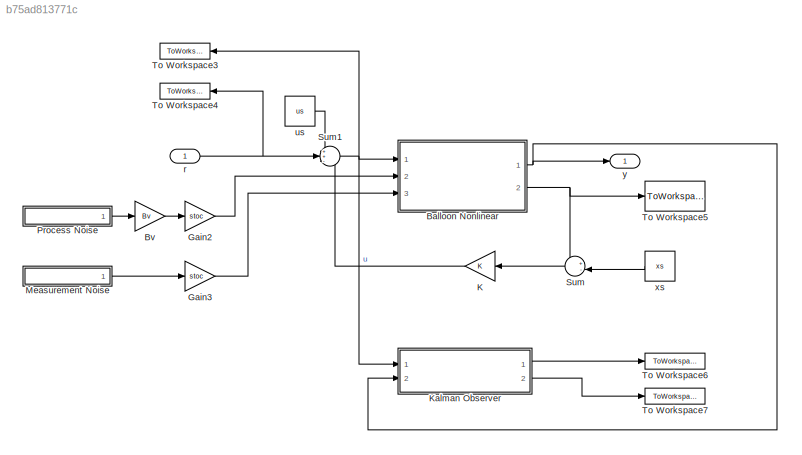
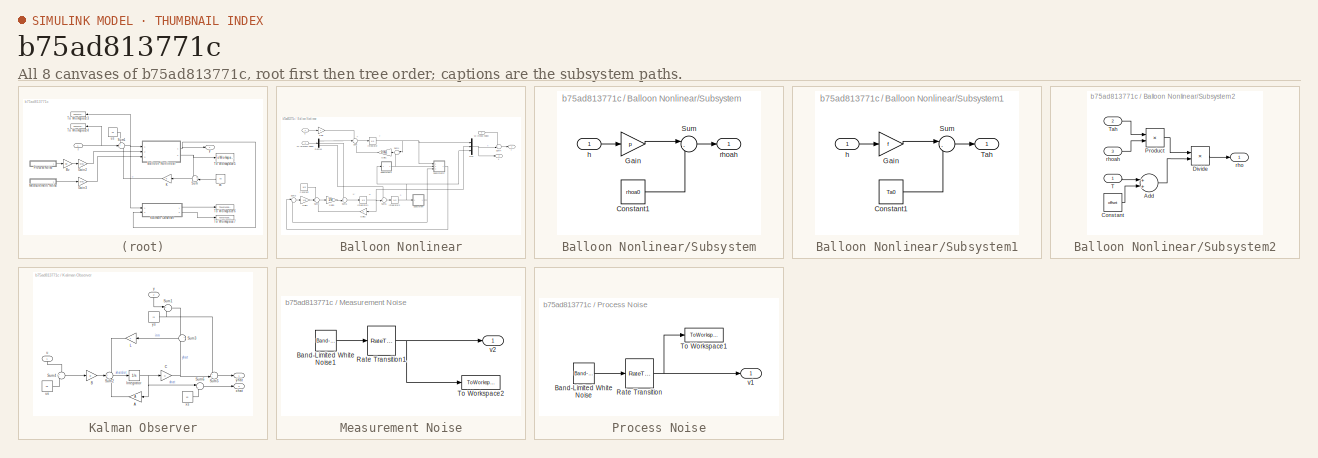
[diagram: thumbnail index - all 8 canvases of the model, root first then tree order]
MODEL slx_b75ad813771c
KIND model
CONFIG AbsTol = auto
CONFIG EnableMultiTasking = on
CONFIG FixedStep = STEP_SIZE
CONFIG MaxStep = auto
CONFIG MinStep = auto
CONFIG RelTol = 1e-3
CONFIG SampleTimeConstraint = Unconstrained
CONFIG Solver = ode4
CONFIG SolverName = ode4
CONFIG StartTime = 0.0
CONFIG StopTime = 2500
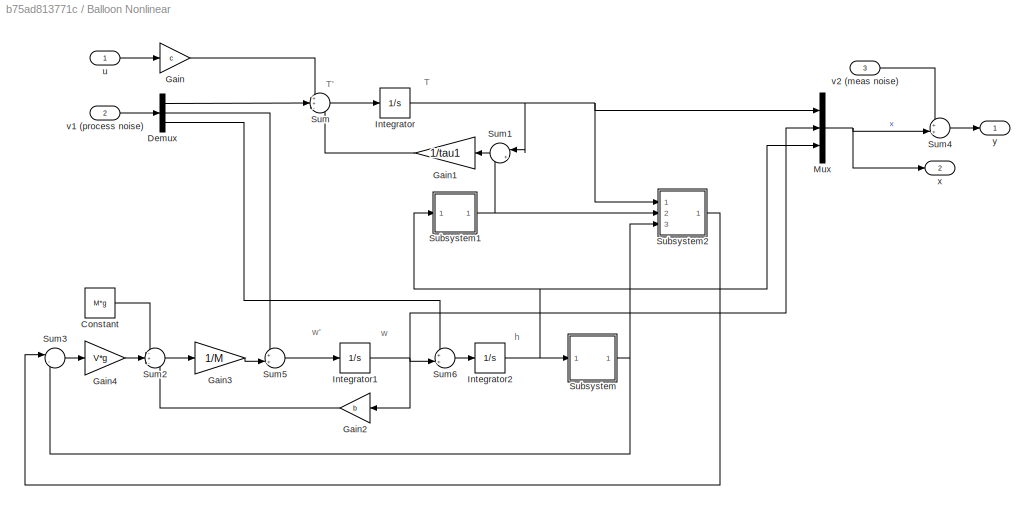
BLOCK [SubSystem] Balloon Nonlinear
  Ports = [3, 2]
  RequestExecContextInheritance = off
  Variant = off
BLOCK [Constant] Balloon Nonlinear/Constant
  Value = M*g
BLOCK [Demux] Balloon Nonlinear/Demux
  DisplayOption = bar
  Outputs = 3
  Ports = [1, 3]
BLOCK [Gain] Balloon Nonlinear/Gain
  Gain = c
  OutDataTypeStr = Inherit: Inherit via internal rule
  ParamDataTypeStr = Inherit: Inherit via internal rule
  SaturateOnIntegerOverflow = off
BLOCK [Gain] Balloon Nonlinear/Gain1
  Gain = 1/tau1
  OutDataTypeStr = Inherit: Inherit via internal rule
  ParamDataTypeStr = Inherit: Inherit via internal rule
  SaturateOnIntegerOverflow = off
BLOCK [Gain] Balloon Nonlinear/Gain2
  Gain = b
  OutDataTypeStr = Inherit: Inherit via internal rule
  ParamDataTypeStr = Inherit: Inherit via internal rule
  SaturateOnIntegerOverflow = off
BLOCK [Gain] Balloon Nonlinear/Gain3
  Gain = 1/M
  OutDataTypeStr = Inherit: Inherit via internal rule
  ParamDataTypeStr = Inherit: Inherit via internal rule
  SaturateOnIntegerOverflow = off
BLOCK [Gain] Balloon Nonlinear/Gain4
  Gain = V*g
  OutDataTypeStr = Inherit: Inherit via internal rule
  ParamDataTypeStr = Inherit: Inherit via internal rule
  SaturateOnIntegerOverflow = off
BLOCK [Integrator] Balloon Nonlinear/Integrator
  InitialCondition = x(1)
  Ports = [1, 1]
  Priority = 1
BLOCK [Integrator] Balloon Nonlinear/Integrator1
  InitialCondition = x(2)
  Ports = [1, 1]
  Priority = 2
BLOCK [Integrator] Balloon Nonlinear/Integrator2
  InitialCondition = x(3)
  Ports = [1, 1]
  Priority = 3
BLOCK [Mux] Balloon Nonlinear/Mux
  DisplayOption = bar
  Inputs = 3
  Ports = [3, 1]
BLOCK [SubSystem] Balloon Nonlinear/Subsystem
  Ports = [1, 1]
  RequestExecContextInheritance = off
  Variant = off
BLOCK [Constant] Balloon Nonlinear/Subsystem/Constant1
  Value = rhoa0
BLOCK [Gain] Balloon Nonlinear/Subsystem/Gain
  Gain = p
  OutDataTypeStr = Inherit: Inherit via internal rule
  ParamDataTypeStr = Inherit: Inherit via internal rule
  SaturateOnIntegerOverflow = off
BLOCK [Sum] Balloon Nonlinear/Subsystem/Sum
  IconShape = round
  InputSameDT = off
  Inputs = |-+
  OutDataTypeStr = Inherit: Inherit via internal rule
  Ports = [2, 1]
  SaturateOnIntegerOverflow = off
BLOCK [Inport] Balloon Nonlinear/Subsystem/h
  IconDisplay = Port number
BLOCK [Outport] Balloon Nonlinear/Subsystem/rhoah
  IconDisplay = Port number
BLOCK [SubSystem] Balloon Nonlinear/Subsystem1
  Ports = [1, 1]
  RequestExecContextInheritance = off
  Variant = off
BLOCK [Constant] Balloon Nonlinear/Subsystem1/Constant1
  Value = Ta0
BLOCK [Gain] Balloon Nonlinear/Subsystem1/Gain
  Gain = f
  OutDataTypeStr = Inherit: Inherit via internal rule
  ParamDataTypeStr = Inherit: Inherit via internal rule
  SaturateOnIntegerOverflow = off
BLOCK [Sum] Balloon Nonlinear/Subsystem1/Sum
  IconShape = round
  InputSameDT = off
  Inputs = |-+
  OutDataTypeStr = Inherit: Inherit via internal rule
  Ports = [2, 1]
  SaturateOnIntegerOverflow = off
BLOCK [Outport] Balloon Nonlinear/Subsystem1/Tah
  IconDisplay = Port number
BLOCK [Inport] Balloon Nonlinear/Subsystem1/h
  IconDisplay = Port number
BLOCK [SubSystem] Balloon Nonlinear/Subsystem2
  Ports = [3, 1]
  RequestExecContextInheritance = off
  Variant = off
BLOCK [Sum] Balloon Nonlinear/Subsystem2/Add
  InputSameDT = off
  OutDataTypeStr = Inherit: Inherit via internal rule
  Ports = [2, 1]
  SaturateOnIntegerOverflow = off
BLOCK [Constant] Balloon Nonlinear/Subsystem2/Constant
  Value = offset
BLOCK [Product] Balloon Nonlinear/Subsystem2/Divide
  InputSameDT = off
  Inputs = */
  OutDataTypeStr = Inherit: Inherit via internal rule
  Ports = [2, 1]
  RndMeth = Floor
  SaturateOnIntegerOverflow = off
BLOCK [Product] Balloon Nonlinear/Subsystem2/Product
  InputSameDT = off
  OutDataTypeStr = Inherit: Inherit via internal rule
  Ports = [2, 1]
  SaturateOnIntegerOverflow = off
BLOCK [Inport] Balloon Nonlinear/Subsystem2/T
  IconDisplay = Port number
BLOCK [Inport] Balloon Nonlinear/Subsystem2/Tah
  IconDisplay = Port number
  Port = 2
BLOCK [Outport] Balloon Nonlinear/Subsystem2/rho
  IconDisplay = Port number
BLOCK [Inport] Balloon Nonlinear/Subsystem2/rhoah
  IconDisplay = Port number
  Port = 3
BLOCK [Sum] Balloon Nonlinear/Sum
  IconShape = round
  InputSameDT = off
  Inputs = ++-
  OutDataTypeStr = Inherit: Inherit via internal rule
  Ports = [3, 1]
  SaturateOnIntegerOverflow = off
BLOCK [Sum] Balloon Nonlinear/Sum1
  IconShape = round
  InputSameDT = off
  Inputs = |+-
  OutDataTypeStr = Inherit: Inherit via internal rule
  Ports = [2, 1]
  SaturateOnIntegerOverflow = off
BLOCK [Sum] Balloon Nonlinear/Sum2
  IconShape = round
  InputSameDT = off
  Inputs = -+-
  OutDataTypeStr = Inherit: Inherit via internal rule
  Ports = [3, 1]
  SaturateOnIntegerOverflow = off
BLOCK [Sum] Balloon Nonlinear/Sum3
  IconShape = round
  InputSameDT = off
  Inputs = |-+
  OutDataTypeStr = Inherit: Inherit via internal rule
  Ports = [2, 1]
  SaturateOnIntegerOverflow = off
BLOCK [Sum] Balloon Nonlinear/Sum4
  IconShape = round
  InputSameDT = off
  Inputs = ++|
  OutDataTypeStr = Inherit: Inherit via internal rule
  Ports = [2, 1]
  SaturateOnIntegerOverflow = off
BLOCK [Sum] Balloon Nonlinear/Sum5
  IconShape = round
  InputSameDT = off
  Inputs = ++|
  OutDataTypeStr = Inherit: Inherit via internal rule
  Ports = [2, 1]
  SaturateOnIntegerOverflow = off
BLOCK [Sum] Balloon Nonlinear/Sum6
  IconShape = round
  InputSameDT = off
  Inputs = ++|
  OutDataTypeStr = Inherit: Inherit via internal rule
  Ports = [2, 1]
  SaturateOnIntegerOverflow = off
BLOCK [Inport] Balloon Nonlinear/u
  IconDisplay = Port number
BLOCK [Inport] Balloon Nonlinear/v1 (process noise)
  IconDisplay = Port number
  Port = 2
BLOCK [Inport] Balloon Nonlinear/v2 (meas noise)
  IconDisplay = Port number
  Port = 3
BLOCK [Outport] Balloon Nonlinear/x
  IconDisplay = Port number
  Port = 2
BLOCK [Outport] Balloon Nonlinear/y
  IconDisplay = Port number
BLOCK [Gain] Bv
  Gain = Bv
  Multiplication = Matrix(K*u)
  OutDataTypeStr = Inherit: Inherit via internal rule
  ParamDataTypeStr = Inherit: Inherit via internal rule
  SaturateOnIntegerOverflow = off
BLOCK [Gain] Gain2
  Gain = stoc
  OutDataTypeStr = Inherit: Inherit via internal rule
  ParamDataTypeStr = Inherit: Inherit via internal rule
  SaturateOnIntegerOverflow = off
BLOCK [Gain] Gain3
  Gain = stoc
  OutDataTypeStr = Inherit: Inherit via internal rule
  ParamDataTypeStr = Inherit: Inherit via internal rule
  SaturateOnIntegerOverflow = off
BLOCK [Gain] K
  Gain = K
  Multiplication = Matrix(K*u)
  OutDataTypeStr = Inherit: Inherit via internal rule
  ParamDataTypeStr = Inherit: Inherit via internal rule
  SaturateOnIntegerOverflow = off
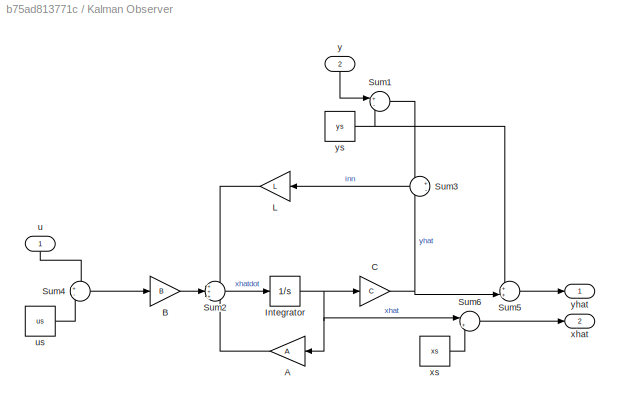
BLOCK [SubSystem] Kalman Observer
  Ports = [2, 2]
  RequestExecContextInheritance = off
  Variant = off
BLOCK [Gain] Kalman Observer/A
  Gain = A
  Multiplication = Matrix(K*u)
  OutDataTypeStr = Inherit: Inherit via internal rule
  ParamDataTypeStr = Inherit: Inherit via internal rule
  SaturateOnIntegerOverflow = off
BLOCK [Gain] Kalman Observer/B
  Gain = B
  Multiplication = Matrix(K*u)
  OutDataTypeStr = Inherit: Inherit via internal rule
  ParamDataTypeStr = Inherit: Inherit via internal rule
  SaturateOnIntegerOverflow = off
BLOCK [Gain] Kalman Observer/C
  Gain = C
  Multiplication = Matrix(K*u)
  OutDataTypeStr = Inherit: Inherit via internal rule
  ParamDataTypeStr = Inherit: Inherit via internal rule
  SaturateOnIntegerOverflow = off
BLOCK [Integrator] Kalman Observer/Integrator
  Ports = [1, 1]
BLOCK [Gain] Kalman Observer/L
  Gain = L
  Multiplication = Matrix(K*u)
  OutDataTypeStr = Inherit: Inherit via internal rule
  ParamDataTypeStr = Inherit: Inherit via internal rule
  SaturateOnIntegerOverflow = off
BLOCK [Sum] Kalman Observer/Sum1
  IconShape = round
  InputSameDT = off
  Inputs = +-
  OutDataTypeStr = Inherit: Inherit via internal rule
  Ports = [2, 1]
  SaturateOnIntegerOverflow = off
BLOCK [Sum] Kalman Observer/Sum2
  IconShape = round
  InputSameDT = off
  Inputs = +++
  OutDataTypeStr = Inherit: Inherit via internal rule
  Ports = [3, 1]
  SaturateOnIntegerOverflow = off
BLOCK [Sum] Kalman Observer/Sum3
  IconShape = round
  InputSameDT = off
  Inputs = +-
  OutDataTypeStr = Inherit: Inherit via internal rule
  Ports = [2, 1]
  SaturateOnIntegerOverflow = off
BLOCK [Sum] Kalman Observer/Sum4
  IconShape = round
  InputSameDT = off
  Inputs = +-
  OutDataTypeStr = Inherit: Inherit via internal rule
  Ports = [2, 1]
  SaturateOnIntegerOverflow = off
BLOCK [Sum] Kalman Observer/Sum5
  IconShape = round
  InputSameDT = off
  Inputs = ++|
  OutDataTypeStr = Inherit: Inherit via internal rule
  Ports = [2, 1]
  SaturateOnIntegerOverflow = off
BLOCK [Sum] Kalman Observer/Sum6
  IconShape = round
  InputSameDT = off
  Inputs = |++
  OutDataTypeStr = Inherit: Inherit via internal rule
  Ports = [2, 1]
  SaturateOnIntegerOverflow = off
BLOCK [Inport] Kalman Observer/u
  IconDisplay = Port number
BLOCK [Constant] Kalman Observer/us
  Value = us
BLOCK [Outport] Kalman Observer/xhat
  IconDisplay = Port number
  Port = 2
BLOCK [Constant] Kalman Observer/xs
  Value = xs
BLOCK [Inport] Kalman Observer/y
  IconDisplay = Port number
  Port = 2
BLOCK [Outport] Kalman Observer/yhat
  IconDisplay = Port number
BLOCK [Constant] Kalman Observer/ys
  Value = ys
BLOCK [SubSystem] Measurement Noise
  Ports = [0, 1]
  RequestExecContextInheritance = off
  Variant = off
BLOCK [Reference] Measurement Noise/Band-Limited White Noise1  REF=simulink/Sources/Band-Limited
White Noise
  Ports = [0, 1]
  SourceBlock = simulink/Sources/Band-Limited\nWhite Noise
  SourceProductBaseCode = SL
  SourceProductName = Simulink
  SourceType = Band-Limited White Noise.
BLOCK [RateTransition] Measurement Noise/Rate Transition1
  OutPortSampleTimeOpt = Inherit
BLOCK [ToWorkspace] Measurement Noise/To Workspace2
  MaxDataPoints = inf
  Ports = [1]
  SampleTime = -1
  SaveFormat = Structure With Time
  VariableName = sim_v2
BLOCK [Outport] Measurement Noise/v2
  IconDisplay = Port number
BLOCK [SubSystem] Process Noise
  Ports = [0, 1]
  RequestExecContextInheritance = off
  Variant = off
BLOCK [Reference] Process Noise/Band-Limited White Noise  REF=simulink/Sources/Band-Limited
White Noise
  Ports = [0, 1]
  SourceBlock = simulink/Sources/Band-Limited\nWhite Noise
  SourceProductBaseCode = SL
  SourceProductName = Simulink
  SourceType = Band-Limited White Noise.
BLOCK [RateTransition] Process Noise/Rate Transition
  OutPortSampleTimeOpt = Inherit
BLOCK [ToWorkspace] Process Noise/To Workspace1
  MaxDataPoints = inf
  Ports = [1]
  SampleTime = -1
  SaveFormat = Structure With Time
  VariableName = sim_v1
BLOCK [Outport] Process Noise/v1
  IconDisplay = Port number
BLOCK [Sum] Sum
  IconShape = round
  InputSameDT = off
  Inputs = +-|
  OutDataTypeStr = Inherit: Inherit via internal rule
  Ports = [2, 1]
  SaturateOnIntegerOverflow = off
BLOCK [Sum] Sum1
  IconShape = round
  InputSameDT = off
  Inputs = ++-
  OutDataTypeStr = Inherit: Inherit via internal rule
  Ports = [3, 1]
  SaturateOnIntegerOverflow = off
BLOCK [ToWorkspace] To Workspace3
  MaxDataPoints = inf
  Ports = [1]
  SampleTime = -1
  SaveFormat = Structure With Time
  VariableName = q
BLOCK [ToWorkspace] To Workspace4
  MaxDataPoints = inf
  Ports = [1]
  SampleTime = -1
  SaveFormat = Structure With Time
  VariableName = r
BLOCK [ToWorkspace] To Workspace5
  MaxDataPoints = inf
  Ports = [1]
  SampleTime = -1
  SaveFormat = Structure With Time
  VariableName = sim_x
BLOCK [ToWorkspace] To Workspace6
  MaxDataPoints = inf
  Ports = [1]
  SampleTime = -1
  SaveFormat = Structure With Time
  VariableName = sim_yhat
BLOCK [ToWorkspace] To Workspace7
  MaxDataPoints = inf
  Ports = [1]
  SampleTime = -1
  SaveFormat = Structure With Time
  VariableName = sim_xhat
BLOCK [Inport] r
  IconDisplay = Port number
BLOCK [Constant] us
  Value = us
BLOCK [Constant] xs
  Value = xs
BLOCK [Outport] y
  IconDisplay = Port number
ANNOTATION Balloon Nonlinear: T
ANNOTATION Balloon Nonlinear: T'
ANNOTATION Balloon Nonlinear: h
ANNOTATION Balloon Nonlinear: w
ANNOTATION Balloon Nonlinear: w'
LINE Balloon Nonlinear/Constant:1 -> Balloon Nonlinear/Sum2:1
LINE Balloon Nonlinear/Demux:1 -> Balloon Nonlinear/Sum:2
LINE Balloon Nonlinear/Demux:2 -> Balloon Nonlinear/Sum5:1
LINE Balloon Nonlinear/Demux:3 -> Balloon Nonlinear/Sum6:1
LINE Balloon Nonlinear/Gain1:1 -> Balloon Nonlinear/Sum:3
LINE Balloon Nonlinear/Gain2:1 -> Balloon Nonlinear/Sum2:3
LINE Balloon Nonlinear/Gain3:1 -> Balloon Nonlinear/Sum5:2
LINE Balloon Nonlinear/Gain4:1 -> Balloon Nonlinear/Sum2:2
LINE Balloon Nonlinear/Gain:1 -> Balloon Nonlinear/Sum:1
NET Balloon Nonlinear/Integrator1:1 -> Balloon Nonlinear/Gain2:1, Balloon Nonlinear/Mux:2, Balloon Nonlinear/Sum6:2
NET Balloon Nonlinear/Integrator2:1 -> Balloon Nonlinear/Mux:3, Balloon Nonlinear/Subsystem1:1, Balloon Nonlinear/Subsystem:1
NET Balloon Nonlinear/Integrator:1 -> Balloon Nonlinear/Mux:1, Balloon Nonlinear/Subsystem2:1, Balloon Nonlinear/Sum1:1
NET Balloon Nonlinear/Mux:1 -> Balloon Nonlinear/Sum4:2, Balloon Nonlinear/x:1
LINE Balloon Nonlinear/Subsystem/Constant1:1 -> Balloon Nonlinear/Subsystem/Sum:2
LINE Balloon Nonlinear/Subsystem/Gain:1 -> Balloon Nonlinear/Subsystem/Sum:1
LINE Balloon Nonlinear/Subsystem/Sum:1 -> Balloon Nonlinear/Subsystem/rhoah:1
LINE Balloon Nonlinear/Subsystem/h:1 -> Balloon Nonlinear/Subsystem/Gain:1
LINE Balloon Nonlinear/Subsystem1/Constant1:1 -> Balloon Nonlinear/Subsystem1/Sum:2
LINE Balloon Nonlinear/Subsystem1/Gain:1 -> Balloon Nonlinear/Subsystem1/Sum:1
LINE Balloon Nonlinear/Subsystem1/Sum:1 -> Balloon Nonlinear/Subsystem1/Tah:1
LINE Balloon Nonlinear/Subsystem1/h:1 -> Balloon Nonlinear/Subsystem1/Gain:1
NET Balloon Nonlinear/Subsystem1:1 -> Balloon Nonlinear/Subsystem2:2, Balloon Nonlinear/Sum1:2
LINE Balloon Nonlinear/Subsystem2/Add:1 -> Balloon Nonlinear/Subsystem2/Divide:2
LINE Balloon Nonlinear/Subsystem2/Constant:1 -> Balloon Nonlinear/Subsystem2/Add:2
LINE Balloon Nonlinear/Subsystem2/Divide:1 -> Balloon Nonlinear/Subsystem2/rho:1
LINE Balloon Nonlinear/Subsystem2/Product:1 -> Balloon Nonlinear/Subsystem2/Divide:1
LINE Balloon Nonlinear/Subsystem2/T:1 -> Balloon Nonlinear/Subsystem2/Add:1
LINE Balloon Nonlinear/Subsystem2/Tah:1 -> Balloon Nonlinear/Subsystem2/Product:1
LINE Balloon Nonlinear/Subsystem2/rhoah:1 -> Balloon Nonlinear/Subsystem2/Product:2
LINE Balloon Nonlinear/Subsystem2:1 -> Balloon Nonlinear/Sum3:1
NET Balloon Nonlinear/Subsystem:1 -> Balloon Nonlinear/Subsystem2:3, Balloon Nonlinear/Sum3:2
LINE Balloon Nonlinear/Sum1:1 -> Balloon Nonlinear/Gain1:1
LINE Balloon Nonlinear/Sum2:1 -> Balloon Nonlinear/Gain3:1
LINE Balloon Nonlinear/Sum3:1 -> Balloon Nonlinear/Gain4:1
LINE Balloon Nonlinear/Sum4:1 -> Balloon Nonlinear/y:1
LINE Balloon Nonlinear/Sum5:1 -> Balloon Nonlinear/Integrator1:1
LINE Balloon Nonlinear/Sum6:1 -> Balloon Nonlinear/Integrator2:1
LINE Balloon Nonlinear/Sum:1 -> Balloon Nonlinear/Integrator:1
LINE Balloon Nonlinear/u:1 -> Balloon Nonlinear/Gain:1
LINE Balloon Nonlinear/v1 (process noise):1 -> Balloon Nonlinear/Demux:1
LINE Balloon Nonlinear/v2 (meas noise):1 -> Balloon Nonlinear/Sum4:1
NET Balloon Nonlinear:1 -> Kalman Observer:2, y:1
NET Balloon Nonlinear:2 -> Sum:1, To Workspace5:1
LINE Bv:1 -> Gain2:1
LINE Gain2:1 -> Balloon Nonlinear:2
LINE Gain3:1 -> Balloon Nonlinear:3
LINE K:1 -> Sum1:3
LINE Kalman Observer/A:1 -> Kalman Observer/Sum2:3
LINE Kalman Observer/B:1 -> Kalman Observer/Sum2:2
NET Kalman Observer/C:1 -> Kalman Observer/Sum3:2, Kalman Observer/Sum5:2
NET Kalman Observer/Integrator:1 -> Kalman Observer/A:1, Kalman Observer/C:1, Kalman Observer/Sum6:1
LINE Kalman Observer/L:1 -> Kalman Observer/Sum2:1
LINE Kalman Observer/Sum1:1 -> Kalman Observer/Sum3:1
LINE Kalman Observer/Sum2:1 -> Kalman Observer/Integrator:1
LINE Kalman Observer/Sum3:1 -> Kalman Observer/L:1
LINE Kalman Observer/Sum4:1 -> Kalman Observer/B:1
LINE Kalman Observer/Sum5:1 -> Kalman Observer/yhat:1
LINE Kalman Observer/Sum6:1 -> Kalman Observer/xhat:1
LINE Kalman Observer/u:1 -> Kalman Observer/Sum4:1
LINE Kalman Observer/us:1 -> Kalman Observer/Sum4:2
LINE Kalman Observer/xs:1 -> Kalman Observer/Sum6:2
LINE Kalman Observer/y:1 -> Kalman Observer/Sum1:1
NET Kalman Observer/ys:1 -> Kalman Observer/Sum1:2, Kalman Observer/Sum5:1
LINE Kalman Observer:1 -> To Workspace6:1
LINE Kalman Observer:2 -> To Workspace7:1
LINE Measurement Noise/Band-Limited White Noise1:1 -> Measurement Noise/Rate Transition1:1
NET Measurement Noise/Rate Transition1:1 -> Measurement Noise/To Workspace2:1, Measurement Noise/v2:1
LINE Measurement Noise:1 -> Gain3:1
LINE Process Noise/Band-Limited White Noise:1 -> Process Noise/Rate Transition:1
NET Process Noise/Rate Transition:1 -> Process Noise/To Workspace1:1, Process Noise/v1:1
LINE Process Noise:1 -> Bv:1
NET Sum1:1 -> Balloon Nonlinear:1, Kalman Observer:1, To Workspace3:1
LINE Sum:1 -> K:1
NET r:1 -> Sum1:2, To Workspace4:1
LINE us:1 -> Sum1:1
LINE xs:1 -> Sum:2
note: NET lines group one-source signal fan-out (src -> all destinations, sorted); 1:1 wires keep LINE
